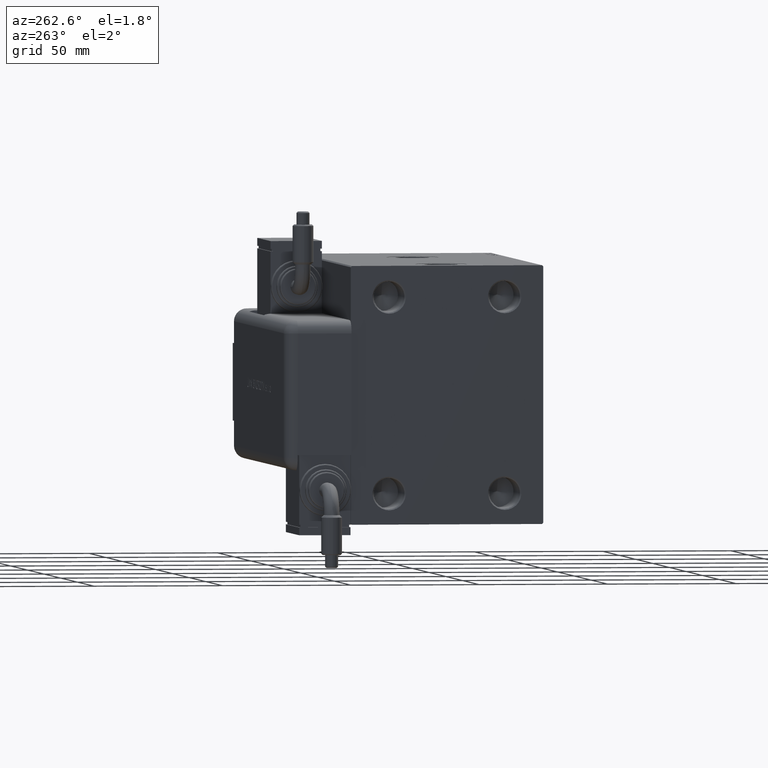
[diagram: clean part render]
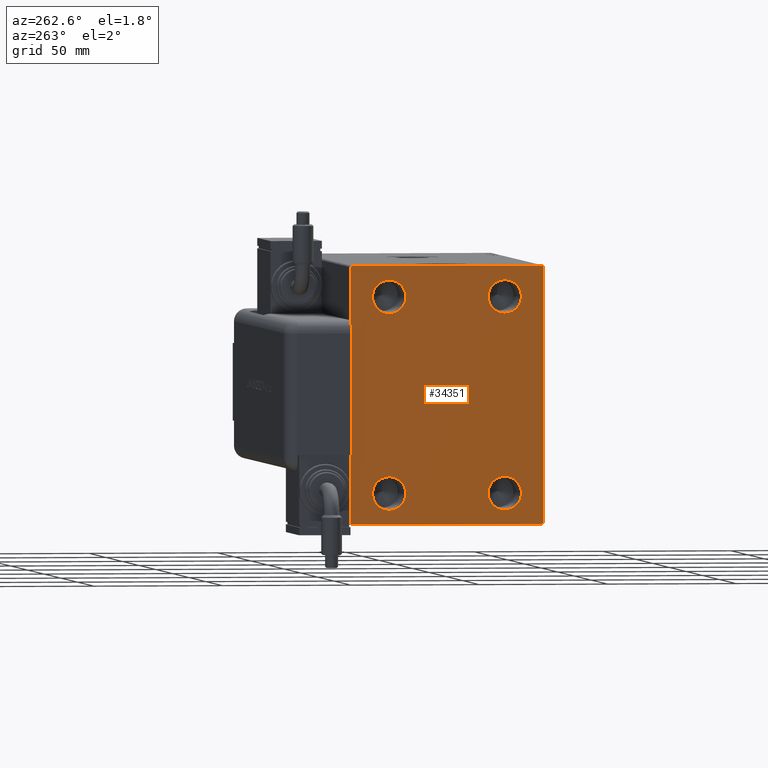
[diagram: same view with one face highlighted and labeled with its STEP entity id]
A machine part, auxiliary view. The second image highlights one B-rep face of the part: STEP entity #34351.
In plain terms, the highlighted planar face has unit normal (-1, -0, 0).
Its self-contained STEP definition (entity closure, byte-faithful):
#35 = EDGE_CURVE ( 'NONE', #50718, #5353, #52308, .T. ) ;
#546 = CIRCLE ( 'NONE', #6644, 6.500000000000005329 ) ;
#1681 = CARTESIAN_POINT ( 'NONE',  ( 153.0000000000000000, -22.50000000000000711, -38.00000000000000000 ) ) ;
#1794 = DIRECTION ( 'NONE',  ( 1.000000000000000000, -0.000000000000000000, -0.000000000000000000 ) ) ;
#2029 = EDGE_CURVE ( 'NONE', #59803, #60102, #18298, .T. ) ;
#2572 = LINE ( 'NONE', #35283, #22133 ) ;
#2915 = DIRECTION ( 'NONE',  ( 1.000000000000000000, -0.000000000000000000, -0.000000000000000000 ) ) ;
#2947 = VERTEX_POINT ( 'NONE', #4550 ) ;
#3438 = FACE_BOUND ( 'NONE', #58260, .T. ) ;
#3666 = EDGE_CURVE ( 'NONE', #44996, #37005, #8395, .T. ) ;
#3696 = ORIENTED_EDGE ( 'NONE', *, *, #46019, .F. ) ;
#3703 = DIRECTION ( 'NONE',  ( 1.000000000000000000, -0.000000000000000000, -0.000000000000000000 ) ) ;
#4216 = ORIENTED_EDGE ( 'NONE', *, *, #14379, .T. ) ;
#4277 = VECTOR ( 'NONE', #23259, 1000.000000000000114 ) ;
#4350 = ORIENTED_EDGE ( 'NONE', *, *, #52814, .T. ) ;
#4381 = FACE_BOUND ( 'NONE', #61339, .T. ) ;
#4550 = CARTESIAN_POINT ( 'NONE',  ( 153.0000000000000000, 22.49999999999999289, 44.50000000000000711 ) ) ;
#5208 = VECTOR ( 'NONE', #57264, 1000.000000000000000 ) ;
#5353 = VERTEX_POINT ( 'NONE', #49139 ) ;
#5373 = DIRECTION ( 'NONE',  ( 1.000000000000000000, -0.000000000000000000, -0.000000000000000000 ) ) ;
#5509 = VECTOR ( 'NONE', #25483, 1000.000000000000000 ) ;
#5701 = DIRECTION ( 'NONE',  ( 1.000000000000000000, -0.000000000000000000, -0.000000000000000000 ) ) ;
#5935 = CARTESIAN_POINT ( 'NONE',  ( 153.0000000000000000, -22.50000000000000711, 31.49999999999999289 ) ) ;
#6171 = ORIENTED_EDGE ( 'NONE', *, *, #57910, .T. ) ;
#6545 = VECTOR ( 'NONE', #61515, 1000.000000000000000 ) ;
#6644 = AXIS2_PLACEMENT_3D ( 'NONE', #1681, #40409, #59801 ) ;
#6683 = CARTESIAN_POINT ( 'NONE',  ( 153.0000000000000000, 37.50000000000000000, -50.00000000000000000 ) ) ;
#6776 = EDGE_CURVE ( 'NONE', #33217, #48160, #46904, .T. ) ;
#6878 = EDGE_CURVE ( 'NONE', #5353, #15510, #8153, .T. ) ;
#7033 = CARTESIAN_POINT ( 'NONE',  ( 153.0000000000000000, 22.49999999999999289, -31.49999999999999289 ) ) ;
#8153 = LINE ( 'NONE', #12901, #55026 ) ;
#8300 = EDGE_CURVE ( 'NONE', #2947, #13066, #9289, .T. ) ;
#8395 = LINE ( 'NONE', #38822, #5208 ) ;
#9105 = LINE ( 'NONE', #37978, #6545 ) ;
#9289 = CIRCLE ( 'NONE', #17395, 6.500000000000005329 ) ;
#10700 = DIRECTION ( 'NONE',  ( 1.000000000000000000, -0.000000000000000000, -0.000000000000000000 ) ) ;
#10911 = AXIS2_PLACEMENT_3D ( 'NONE', #56153, #18038, #37079 ) ;
#11734 = DIRECTION ( 'NONE',  ( 0.000000000000000000, 0.000000000000000000, -1.000000000000000000 ) ) ;
#11947 = ORIENTED_EDGE ( 'NONE', *, *, #6776, .F. ) ;
#12109 = CARTESIAN_POINT ( 'NONE',  ( 153.0000000000000000, 37.49999999999998579, 49.49999999999998579 ) ) ;
#12419 = AXIS2_PLACEMENT_3D ( 'NONE', #26877, #55777, #21791 ) ;
#12660 = VERTEX_POINT ( 'NONE', #61927 ) ;
#12901 = CARTESIAN_POINT ( 'NONE',  ( 153.0000000000000000, 37.49999999999998579, 50.00000000000001421 ) ) ;
#13066 = VERTEX_POINT ( 'NONE', #44038 ) ;
#14267 = DIRECTION ( 'NONE',  ( 0.000000000000000000, 0.000000000000000000, -1.000000000000000000 ) ) ;
#14379 = EDGE_CURVE ( 'NONE', #15510, #44996, #53743, .T. ) ;
#15510 = VERTEX_POINT ( 'NONE', #33826 ) ;
#17395 = AXIS2_PLACEMENT_3D ( 'NONE', #46412, #2915, #22271 ) ;
#18038 = DIRECTION ( 'NONE',  ( 1.000000000000000000, 0.000000000000000000, 0.000000000000000000 ) ) ;
#18298 = CIRCLE ( 'NONE', #47718, 6.500000000000005329 ) ;
#18450 = CARTESIAN_POINT ( 'NONE',  ( 153.0000000000000000, -36.99999999999997158, -50.00000000000001421 ) ) ;
#18566 = CARTESIAN_POINT ( 'NONE',  ( 153.0000000000000000, 37.50000000000000000, -49.49999999999997158 ) ) ;
#18614 = DIRECTION ( 'NONE',  ( 0.000000000000000000, 0.000000000000000000, -1.000000000000000000 ) ) ;
#19006 = CIRCLE ( 'NONE', #36270, 6.500000000000005329 ) ;
#19441 = CARTESIAN_POINT ( 'NONE',  ( 153.0000000000000000, 43.49999999999998579, -43.49999999999998579 ) ) ;
#19464 = CARTESIAN_POINT ( 'NONE',  ( 153.0000000000000000, -43.49999999999894129, 43.50000000000136424 ) ) ;
#20836 = DIRECTION ( 'NONE',  ( 0.000000000000000000, 0.000000000000000000, -1.000000000000000000 ) ) ;
#21350 = AXIS2_PLACEMENT_3D ( 'NONE', #25624, #10700, #20836 ) ;
#21791 = DIRECTION ( 'NONE',  ( 0.000000000000000000, 0.000000000000000000, -1.000000000000000000 ) ) ;
#22133 = VECTOR ( 'NONE', #26391, 1000.000000000000000 ) ;
#22271 = DIRECTION ( 'NONE',  ( 0.000000000000000000, 0.000000000000000000, -1.000000000000000000 ) ) ;
#22526 = EDGE_LOOP ( 'NONE', ( #48205, #3696 ) ) ;
#22784 = FACE_OUTER_BOUND ( 'NONE', #55823, .T. ) ;
#23259 = DIRECTION ( 'NONE',  ( -0.000000000000000000, 0.7071067811865474617, 0.7071067811865474617 ) ) ;
#23361 = ORIENTED_EDGE ( 'NONE', *, *, #3666, .T. ) ;
#24200 = LINE ( 'NONE', #19441, #4277 ) ;
#24335 = DIRECTION ( 'NONE',  ( -0.000000000000000000, -0.7071067811865474617, 0.7071067811865474617 ) ) ;
#24748 = ORIENTED_EDGE ( 'NONE', *, *, #54065, .F. ) ;
#25483 = DIRECTION ( 'NONE',  ( 0.000000000000000000, -0.7071067811865672237, -0.7071067811865279218 ) ) ;
#25624 = CARTESIAN_POINT ( 'NONE',  ( 153.0000000000000000, 22.49999999999999289, 38.00000000000000000 ) ) ;
#26275 = EDGE_CURVE ( 'NONE', #37327, #54248, #19006, .T. ) ;
#26391 = DIRECTION ( 'NONE',  ( 0.000000000000000000, 1.000000000000000000, 1.850371707708594316E-16 ) ) ;
#26778 = ORIENTED_EDGE ( 'NONE', *, *, #35, .T. ) ;
#26877 = CARTESIAN_POINT ( 'NONE',  ( 153.0000000000000000, 22.49999999999999289, -38.00000000000000000 ) ) ;
#27400 = CARTESIAN_POINT ( 'NONE',  ( 153.0000000000000000, -22.50000000000000711, 44.50000000000000711 ) ) ;
#27544 = EDGE_CURVE ( 'NONE', #30364, #12660, #2572, .T. ) ;
#28120 = DIRECTION ( 'NONE',  ( 0.000000000000000000, -1.000000000000000000, -3.700743415417189125E-16 ) ) ;
#28498 = FACE_BOUND ( 'NONE', #22526, .T. ) ;
#30364 = VERTEX_POINT ( 'NONE', #18450 ) ;
#30788 = LINE ( 'NONE', #6683, #43819 ) ;
#33217 = VERTEX_POINT ( 'NONE', #7033 ) ;
#33826 = CARTESIAN_POINT ( 'NONE',  ( 153.0000000000000000, -36.99999999999997158, 49.99999999999998579 ) ) ;
#33903 = VECTOR ( 'NONE', #24335, 1000.000000000000114 ) ;
#34091 = CARTESIAN_POINT ( 'NONE',  ( 153.0000000000000000, -22.50000000000000711, -31.49999999999999289 ) ) ;
#34249 = CARTESIAN_POINT ( 'NONE',  ( 153.0000000000000000, 22.49999999999999289, -38.00000000000000000 ) ) ;
#34351 = ADVANCED_FACE ( 'NONE', ( #28498, #47870, #3438, #4381, #22784 ), #62482, .T. ) ;
#35283 = CARTESIAN_POINT ( 'NONE',  ( 153.0000000000000000, -37.50000000000000000, -50.00000000000001421 ) ) ;
#36270 = AXIS2_PLACEMENT_3D ( 'NONE', #47199, #3703, #18614 ) ;
#37005 = VERTEX_POINT ( 'NONE', #42140 ) ;
#37079 = DIRECTION ( 'NONE',  ( 0.000000000000000000, 0.000000000000000000, -1.000000000000000000 ) ) ;
#37327 = VERTEX_POINT ( 'NONE', #34091 ) ;
#37621 = CIRCLE ( 'NONE', #52868, 6.500000000000005329 ) ;
#37666 = EDGE_LOOP ( 'NONE', ( #43425, #41262 ) ) ;
#37978 = CARTESIAN_POINT ( 'NONE',  ( 153.0000000000000000, -43.49999999999896261, -43.50000000000138556 ) ) ;
#38004 = ORIENTED_EDGE ( 'NONE', *, *, #27544, .T. ) ;
#38822 = CARTESIAN_POINT ( 'NONE',  ( 153.0000000000000000, -37.50000000000000000, 49.99999999999998579 ) ) ;
#40409 = DIRECTION ( 'NONE',  ( 1.000000000000000000, -0.000000000000000000, -0.000000000000000000 ) ) ;
#41262 = ORIENTED_EDGE ( 'NONE', *, *, #2029, .F. ) ;
#41833 = AXIS2_PLACEMENT_3D ( 'NONE', #34249, #5373, #14267 ) ;
#42140 = CARTESIAN_POINT ( 'NONE',  ( 153.0000000000000000, -37.50000000000000000, -49.50000000000001421 ) ) ;
#43425 = ORIENTED_EDGE ( 'NONE', *, *, #47013, .F. ) ;
#43819 = VECTOR ( 'NONE', #45399, 1000.000000000000000 ) ;
#44038 = CARTESIAN_POINT ( 'NONE',  ( 153.0000000000000000, 22.49999999999999289, 31.49999999999999289 ) ) ;
#44996 = VERTEX_POINT ( 'NONE', #56450 ) ;
#45399 = DIRECTION ( 'NONE',  ( 0.000000000000000000, -1.387778780781445429E-16, 1.000000000000000000 ) ) ;
#45976 = CARTESIAN_POINT ( 'NONE',  ( 153.0000000000000000, -22.50000000000000711, -44.50000000000000711 ) ) ;
#46019 = EDGE_CURVE ( 'NONE', #13066, #2947, #57851, .T. ) ;
#46412 = CARTESIAN_POINT ( 'NONE',  ( 153.0000000000000000, 22.49999999999999289, 38.00000000000000000 ) ) ;
#46904 = CIRCLE ( 'NONE', #12419, 6.500000000000005329 ) ;
#47013 = EDGE_CURVE ( 'NONE', #60102, #59803, #37621, .T. ) ;
#47199 = CARTESIAN_POINT ( 'NONE',  ( 153.0000000000000000, -22.50000000000000711, -38.00000000000000000 ) ) ;
#47718 = AXIS2_PLACEMENT_3D ( 'NONE', #54280, #5701, #11734 ) ;
#47870 = FACE_BOUND ( 'NONE', #37666, .T. ) ;
#48160 = VERTEX_POINT ( 'NONE', #58574 ) ;
#48205 = ORIENTED_EDGE ( 'NONE', *, *, #8300, .F. ) ;
#49139 = CARTESIAN_POINT ( 'NONE',  ( 153.0000000000000000, 36.99999999999995737, 50.00000000000001421 ) ) ;
#49744 = DIRECTION ( 'NONE',  ( 0.000000000000000000, 0.000000000000000000, -1.000000000000000000 ) ) ;
#50160 = VERTEX_POINT ( 'NONE', #18566 ) ;
#50718 = VERTEX_POINT ( 'NONE', #12109 ) ;
#51610 = EDGE_CURVE ( 'NONE', #12660, #50160, #24200, .T. ) ;
#52308 = LINE ( 'NONE', #52624, #33903 ) ;
#52624 = CARTESIAN_POINT ( 'NONE',  ( 153.0000000000000000, 43.49999999999998579, 43.49999999999998579 ) ) ;
#52814 = EDGE_CURVE ( 'NONE', #50160, #50718, #30788, .T. ) ;
#52868 = AXIS2_PLACEMENT_3D ( 'NONE', #54516, #1794, #49744 ) ;
#53743 = LINE ( 'NONE', #19464, #5509 ) ;
#54065 = EDGE_CURVE ( 'NONE', #48160, #33217, #58070, .T. ) ;
#54248 = VERTEX_POINT ( 'NONE', #45976 ) ;
#54280 = CARTESIAN_POINT ( 'NONE',  ( 153.0000000000000000, -22.50000000000000711, 38.00000000000000000 ) ) ;
#54516 = CARTESIAN_POINT ( 'NONE',  ( 153.0000000000000000, -22.50000000000000711, 38.00000000000000000 ) ) ;
#55026 = VECTOR ( 'NONE', #28120, 1000.000000000000000 ) ;
#55777 = DIRECTION ( 'NONE',  ( 1.000000000000000000, -0.000000000000000000, -0.000000000000000000 ) ) ;
#55823 = EDGE_LOOP ( 'NONE', ( #57411, #4216, #23361, #6171, #38004, #55992, #4350, #26778 ) ) ;
#55992 = ORIENTED_EDGE ( 'NONE', *, *, #51610, .T. ) ;
#56153 = CARTESIAN_POINT ( 'NONE',  ( 153.0000000000000000, 0.000000000000000000, 0.000000000000000000 ) ) ;
#56450 = CARTESIAN_POINT ( 'NONE',  ( 153.0000000000000000, -37.50000000000000000, 49.49999999999998579 ) ) ;
#57264 = DIRECTION ( 'NONE',  ( 0.000000000000000000, 0.000000000000000000, -1.000000000000000000 ) ) ;
#57411 = ORIENTED_EDGE ( 'NONE', *, *, #6878, .T. ) ;
#57851 = CIRCLE ( 'NONE', #21350, 6.500000000000005329 ) ;
#57910 = EDGE_CURVE ( 'NONE', #37005, #30364, #9105, .T. ) ;
#58070 = CIRCLE ( 'NONE', #41833, 6.500000000000005329 ) ;
#58260 = EDGE_LOOP ( 'NONE', ( #59642, #59305 ) ) ;
#58574 = CARTESIAN_POINT ( 'NONE',  ( 153.0000000000000000, 22.49999999999999289, -44.50000000000000711 ) ) ;
#59305 = ORIENTED_EDGE ( 'NONE', *, *, #60882, .F. ) ;
#59642 = ORIENTED_EDGE ( 'NONE', *, *, #26275, .F. ) ;
#59801 = DIRECTION ( 'NONE',  ( 0.000000000000000000, 0.000000000000000000, -1.000000000000000000 ) ) ;
#59803 = VERTEX_POINT ( 'NONE', #5935 ) ;
#60102 = VERTEX_POINT ( 'NONE', #27400 ) ;
#60882 = EDGE_CURVE ( 'NONE', #54248, #37327, #546, .T. ) ;
#61339 = EDGE_LOOP ( 'NONE', ( #11947, #24748 ) ) ;
#61515 = DIRECTION ( 'NONE',  ( -0.000000000000000000, 0.7071067811865672237, -0.7071067811865279218 ) ) ;
#61927 = CARTESIAN_POINT ( 'NONE',  ( 153.0000000000000000, 36.99999999999997158, -50.00000000000000000 ) ) ;
#62482 = PLANE ( 'NONE',  #10911 ) ;